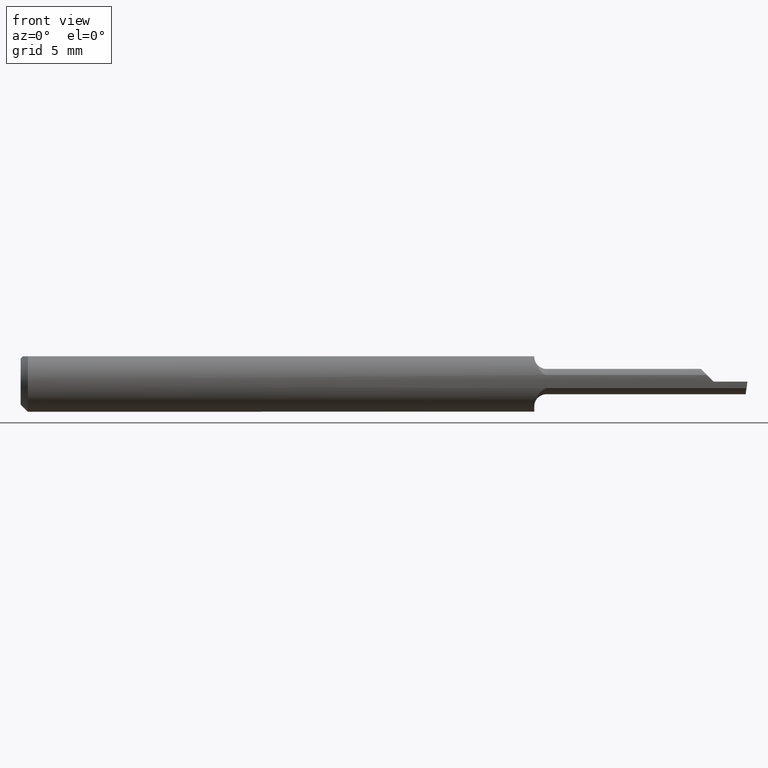
[diagram: clean part render]
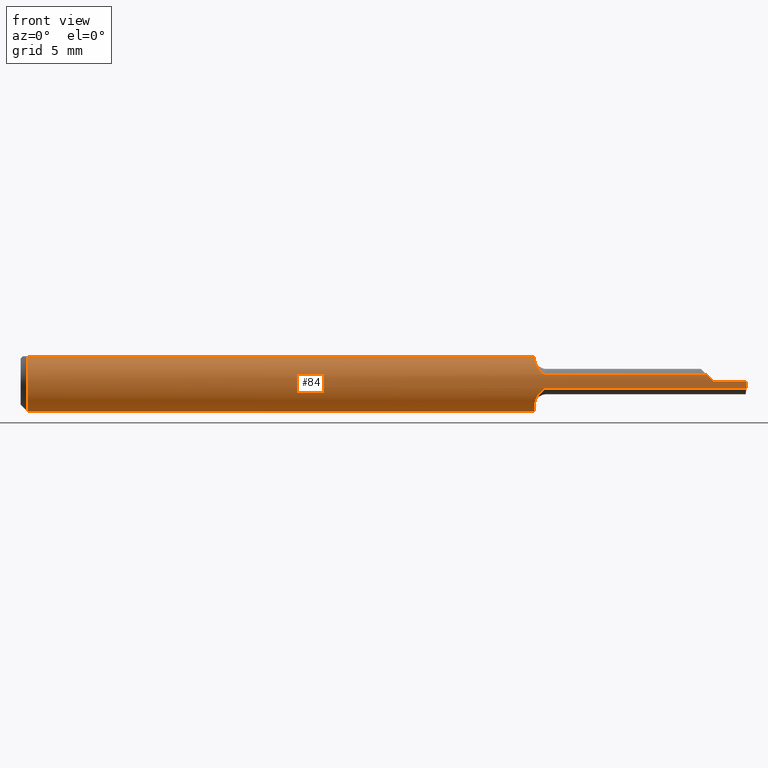
[diagram: same view with one face highlighted and labeled with its STEP entity id]
A machine part, front view. The second image highlights one B-rep face of the part: STEP entity #84.
In plain terms, the highlighted cylindrical surface (edge-blend (fillet) strip) has radius 1.5837 mm, axis along (-1, -0, -0).
Its self-contained STEP definition (entity closure, byte-faithful):
#4 = AXIS2_PLACEMENT_3D ( 'NONE', #352, #344, #346 ) ;
#21 = DIRECTION ( 'NONE',  ( 0.0000000000000000000, 1.000000000000000000, 0.0000000000000000000 ) ) ;
#29 = FACE_OUTER_BOUND ( 'NONE', #183, .T. ) ;
#38 = LINE ( 'NONE', #435, #292 ) ;
#47 = EDGE_CURVE ( 'NONE', #331, #353, #209, .T. ) ;
#52 = EDGE_CURVE ( 'NONE', #126, #471, #139, .T. ) ;
#62 = CARTESIAN_POINT ( 'NONE',  ( 1.060000000000000275, 0.0000000000000000000, 0.0000000000000000000 ) ) ;
#65 = VECTOR ( 'NONE', #253, 39.37007874015748143 ) ;
#69 = CIRCLE ( 'NONE', #78, 0.06235000000000000264 ) ;
#74 = ORIENTED_EDGE ( 'NONE', *, *, #588, .F. ) ;
#78 = AXIS2_PLACEMENT_3D ( 'NONE', #62, #339, #21 ) ;
#79 = EDGE_CURVE ( 'NONE', #353, #134, #268, .T. ) ;
#81 = CARTESIAN_POINT ( 'NONE',  ( 1.080433207467613288, -0.06062583751170534663, 0.01462750901418235876 ) ) ;
#84 = ADVANCED_FACE ( 'NONE', ( #29 ), #154, .T. ) ;
#94 = CARTESIAN_POINT ( 'NONE',  ( 2.249639673992782033E-32, -0.06234999999999999570, 1.836970198721027715E-16 ) ) ;
#97 = ORIENTED_EDGE ( 'NONE', *, *, #365, .F. ) ;
#98 = CIRCLE ( 'NONE', #4, 0.06235000000000000264 ) ;
#100 = DIRECTION ( 'NONE',  ( -1.000000000000000000, -0.0000000000000000000, -0.0000000000000000000 ) ) ;
#102 = VECTOR ( 'NONE', #530, 39.37007874015748143 ) ;
#108 = CARTESIAN_POINT ( 'NONE',  ( 1.064028026996482579, -0.05183160029813502212, -0.03490759449541482734 ) ) ;
#114 = CARTESIAN_POINT ( 'NONE',  ( 1.060000000000000275, -0.03575909090909097643, 0.05107651042656856377 ) ) ;
#118 = CARTESIAN_POINT ( 'NONE',  ( 1.085000000000000187, -0.06085649350649354611, -0.01356501743803189067 ) ) ;
#124 = CARTESIAN_POINT ( 'NONE',  ( 1.061991179683118292, -0.04967762520113500752, 0.03862103888887214592 ) ) ;
#126 = VERTEX_POINT ( 'NONE', #244 ) ;
#131 = LINE ( 'NONE', #297, #328 ) ;
#134 = VERTEX_POINT ( 'NONE', #431 ) ;
#137 =( BOUNDED_CURVE ( )  B_SPLINE_CURVE ( 3, ( #287, #342, #299, #301 ),
 .UNSPECIFIED., .F., .T. ) 
 B_SPLINE_CURVE_WITH_KNOTS ( ( 4, 4 ),
 ( 4.712388980384689674, 4.931705360090145263 ),
 .UNSPECIFIED. ) 
 CURVE ( )  GEOMETRIC_REPRESENTATION_ITEM ( )  RATIONAL_B_SPLINE_CURVE ( ( 1.000000000000000000, 0.9959957088194145713, 0.9959957088194145713, 1.000000000000000000 ) ) 
 REPRESENTATION_ITEM ( '' )  );
#139 = CIRCLE ( 'NONE', #317, 0.06235000000000000264 ) ;
#141 = CARTESIAN_POINT ( 'NONE',  ( 1.080425629910829910, -0.06062459270466517836, -0.01463238755247351676 ) ) ;
#144 = CARTESIAN_POINT ( 'NONE',  ( 0.01500000000000000465, 0.0000000000000000000, -0.06235000000000000264 ) ) ;
#145 = CARTESIAN_POINT ( 'NONE',  ( 1.068001007934660240, -0.05603364408257451718, -0.02766379716794686514 ) ) ;
#153 = DIRECTION ( 'NONE',  ( 1.000000000000000000, 0.0000000000000000000, 0.0000000000000000000 ) ) ;
#154 = CYLINDRICAL_SURFACE ( 'NONE', #487, 0.06235000000000000264 ) ;
#155 = ORIENTED_EDGE ( 'NONE', *, *, #218, .T. ) ;
#161 = CARTESIAN_POINT ( 'NONE',  ( 1.062503775457219524, -0.04920046092876605853, -0.03856495364018283634 ) ) ;
#162 = ORIENTED_EDGE ( 'NONE', *, *, #47, .T. ) ;
#166 = CARTESIAN_POINT ( 'NONE',  ( 1.060000000000000275, -0.03575909090909097643, 0.05107651042656856377 ) ) ;
#171 = CARTESIAN_POINT ( 'NONE',  ( 1.076638124316706691, -0.05991341419477896196, 0.01731585959404105882 ) ) ;
#176 = EDGE_CURVE ( 'NONE', #331, #224, #220, .T. ) ;
#177 = ORIENTED_EDGE ( 'NONE', *, *, #182, .F. ) ;
#182 = EDGE_CURVE ( 'NONE', #224, #326, #355, .T. ) ;
#183 = EDGE_LOOP ( 'NONE', ( #283, #162, #482, #243, #457, #282, #74, #155, #97, #467, #203, #397, #177 ) ) ;
#185 = CARTESIAN_POINT ( 'NONE',  ( 1.497375706250378302, -0.06185016300931096139, -0.009107135837653953722 ) ) ;
#190 = CARTESIAN_POINT ( 'NONE',  ( 1.498481216548989137, -0.06235000000000005121, 1.949268155119779707E-19 ) ) ;
#203 = ORIENTED_EDGE ( 'NONE', *, *, #347, .T. ) ;
#209 =( BOUNDED_CURVE ( )  B_SPLINE_CURVE ( 3, ( #541, #185, #528, #190 ),
 .UNSPECIFIED., .F., .T. ) 
 B_SPLINE_CURVE_WITH_KNOTS ( ( 4, 4 ),
 ( 1.141430502809118508, 1.360746882514575651 ),
 .UNSPECIFIED. ) 
 CURVE ( )  GEOMETRIC_REPRESENTATION_ITEM ( )  RATIONAL_B_SPLINE_CURVE ( ( 1.000000000000000000, 0.9959957088194145713, 0.9959957088194145713, 1.000000000000000000 ) ) 
 REPRESENTATION_ITEM ( '' )  );
#218 = EDGE_CURVE ( 'NONE', #372, #341, #416, .T. ) ;
#220 = LINE ( 'NONE', #533, #102 ) ;
#224 = VERTEX_POINT ( 'NONE', #118 ) ;
#226 = CARTESIAN_POINT ( 'NONE',  ( 1.082616656301558011, -0.06085649350649355999, -0.01356501743803187505 ) ) ;
#230 = CARTESIAN_POINT ( 'NONE',  ( 1.416434982561967981, -0.06085649350649352529, 0.01356501743803199302 ) ) ;
#233 = CARTESIAN_POINT ( 'NONE',  ( 1.060000000000000275, -0.04345517994939344930, 0.04568841430687983762 ) ) ;
#238 = DIRECTION ( 'NONE',  ( 0.0000000000000000000, 0.0000000000000000000, 1.000000000000000000 ) ) ;
#241 = CARTESIAN_POINT ( 'NONE',  ( 1.496854179736618162, -0.06085649350649351141, -0.01356501743803198955 ) ) ;
#243 = ORIENTED_EDGE ( 'NONE', *, *, #609, .T. ) ;
#244 = CARTESIAN_POINT ( 'NONE',  ( 0.01500000000000000465, 0.03386738844375223462, 0.05234999999999997988 ) ) ;
#253 = DIRECTION ( 'NONE',  ( -1.000000000000000000, -0.0000000000000000000, -0.0000000000000000000 ) ) ;
#257 = VERTEX_POINT ( 'NONE', #302 ) ;
#265 = CARTESIAN_POINT ( 'NONE',  ( 1.085000000000000187, -0.06085649350649354611, 0.01356501743803188893 ) ) ;
#268 = LINE ( 'NONE', #94, #65 ) ;
#282 = ORIENTED_EDGE ( 'NONE', *, *, #518, .F. ) ;
#283 = ORIENTED_EDGE ( 'NONE', *, *, #176, .F. ) ;
#287 = CARTESIAN_POINT ( 'NONE',  ( 1.429999999999999938, -0.06235000000000005121, 8.572527594031471957E-18 ) ) ;
#292 = VECTOR ( 'NONE', #492, 39.37007874015748143 ) ;
#293 = CARTESIAN_POINT ( 'NONE',  ( 0.01500000000000000465, 0.0000000000000000000, 0.0000000000000000000 ) ) ;
#297 = CARTESIAN_POINT ( 'NONE',  ( 0.0000000000000000000, 0.03386738844375223462, 0.05234999999999997988 ) ) ;
#299 = CARTESIAN_POINT ( 'NONE',  ( 1.420892864162346170, -0.06185016300931096139, 0.009107135837653894742 ) ) ;
#301 = CARTESIAN_POINT ( 'NONE',  ( 1.416434982561967981, -0.06085649350649352529, 0.01356501743803199302 ) ) ;
#302 = CARTESIAN_POINT ( 'NONE',  ( 1.060000000000000275, 0.03386738844375224156, 0.05235000000000000070 ) ) ;
#310 = CARTESIAN_POINT ( 'NONE',  ( 1.070446013526555662, -0.05765668881463201917, 0.02399993265345986074 ) ) ;
#317 = AXIS2_PLACEMENT_3D ( 'NONE', #593, #100, #590 ) ;
#318 = VERTEX_POINT ( 'NONE', #591 ) ;
#320 = CIRCLE ( 'NONE', #569, 0.06235000000000000264 ) ;
#326 = VERTEX_POINT ( 'NONE', #589 ) ;
#327 = CARTESIAN_POINT ( 'NONE',  ( 1.085000000000000187, -0.06085649350649354611, -0.01356501743803189067 ) ) ;
#328 = VECTOR ( 'NONE', #153, 39.37007874015748143 ) ;
#331 = VERTEX_POINT ( 'NONE', #241 ) ;
#332 = CARTESIAN_POINT ( 'NONE',  ( 1.070470123245630845, -0.05766828269002156199, -0.02396978481147360451 ) ) ;
#339 = DIRECTION ( 'NONE',  ( 1.000000000000000000, -5.691349986800549142E-18, 0.0000000000000000000 ) ) ;
#341 = VERTEX_POINT ( 'NONE', #543 ) ;
#342 = CARTESIAN_POINT ( 'NONE',  ( 1.425432715528476502, -0.06235000000000000264, 0.004567284471523349459 ) ) ;
#344 = DIRECTION ( 'NONE',  ( 1.000000000000000000, -5.691349986800549142E-18, 0.0000000000000000000 ) ) ;
#346 = DIRECTION ( 'NONE',  ( 0.0000000000000000000, 1.000000000000000000, 0.0000000000000000000 ) ) ;
#347 = EDGE_CURVE ( 'NONE', #126, #257, #131, .T. ) ;
#352 = CARTESIAN_POINT ( 'NONE',  ( 1.060000000000000275, 0.0000000000000000000, 0.0000000000000000000 ) ) ;
#353 = VERTEX_POINT ( 'NONE', #443 ) ;
#355 = B_SPLINE_CURVE_WITH_KNOTS ( 'NONE', 3,
 ( #327, #226, #141, #506, #427, #332, #145, #108, #161, #414, #413, #469 ),
 .UNSPECIFIED., .F., .F.,
 ( 4, 2, 2, 2, 2, 4 ),
 ( 1.959605866442545805E-07, 0.0001781565565329113149, 0.0003561171524791784050, 0.0007120383443717128022, 0.001067959536264247037, 0.001423880728156781596 ),
 .UNSPECIFIED. ) ;
#363 = DIRECTION ( 'NONE',  ( -1.000000000000000000, -0.0000000000000000000, -0.0000000000000000000 ) ) ;
#365 = EDGE_CURVE ( 'NONE', #471, #341, #320, .T. ) ;
#372 = VERTEX_POINT ( 'NONE', #496 ) ;
#378 = EDGE_CURVE ( 'NONE', #326, #257, #69, .T. ) ;
#381 = VERTEX_POINT ( 'NONE', #114 ) ;
#390 = CARTESIAN_POINT ( 'NONE',  ( 0.0000000000000000000, 0.0000000000000000000, 0.0000000000000000000 ) ) ;
#397 = ORIENTED_EDGE ( 'NONE', *, *, #378, .F. ) ;
#413 = CARTESIAN_POINT ( 'NONE',  ( 1.060000000000000497, -0.03960861689666768382, -0.04838142517902475209 ) ) ;
#414 = CARTESIAN_POINT ( 'NONE',  ( 1.060507341409734794, -0.04312570811744949328, -0.04525609687369244044 ) ) ;
#416 = LINE ( 'NONE', #437, #520 ) ;
#427 = CARTESIAN_POINT ( 'NONE',  ( 1.074988575955668990, -0.05943257586305055601, -0.01893293834469145578 ) ) ;
#431 = CARTESIAN_POINT ( 'NONE',  ( 1.429999999999999938, -0.06235000000000005121, 8.572527594031471957E-18 ) ) ;
#435 = CARTESIAN_POINT ( 'NONE',  ( 1.265000000000000124, -0.06085649350649351141, 0.01356501743803198955 ) ) ;
#437 = CARTESIAN_POINT ( 'NONE',  ( 0.0000000000000000000, -0.03386738844375222768, 0.05234999999999997988 ) ) ;
#443 = CARTESIAN_POINT ( 'NONE',  ( 1.498481216548989137, -0.06235000000000005121, 1.949268155119779707E-19 ) ) ;
#457 = ORIENTED_EDGE ( 'NONE', *, *, #468, .F. ) ;
#460 = CARTESIAN_POINT ( 'NONE',  ( 1.068026871663806388, -0.05606084547731506051, 0.02761677482959689484 ) ) ;
#462 = CARTESIAN_POINT ( 'NONE',  ( 1.074979073382735129, -0.05942994764455450385, 0.01894190674338625327 ) ) ;
#467 = ORIENTED_EDGE ( 'NONE', *, *, #52, .F. ) ;
#468 = EDGE_CURVE ( 'NONE', #318, #555, #38, .T. ) ;
#469 = CARTESIAN_POINT ( 'NONE',  ( 1.060000000000000275, -0.03575909090909097643, -0.05107651042656856377 ) ) ;
#471 = VERTEX_POINT ( 'NONE', #144 ) ;
#480 = B_SPLINE_CURVE_WITH_KNOTS ( 'NONE', 3,
 ( #166, #233, #124, #460, #310, #462, #171, #81, #561, #265 ),
 .UNSPECIFIED., .F., .F.,
 ( 4, 2, 2, 2, 4 ),
 ( 3.574606898954817336E-06, 0.0007127301008604467998, 0.001067307847841190895, 0.001244596721331566033, 0.001421885594821941387 ),
 .UNSPECIFIED. ) ;
#482 = ORIENTED_EDGE ( 'NONE', *, *, #79, .T. ) ;
#487 = AXIS2_PLACEMENT_3D ( 'NONE', #390, #504, #572 ) ;
#492 = DIRECTION ( 'NONE',  ( 1.000000000000000000, -5.691349986800549142E-18, 0.0000000000000000000 ) ) ;
#496 = CARTESIAN_POINT ( 'NONE',  ( 1.060000000000000275, -0.03386738844380023788, 0.05235000000000000070 ) ) ;
#504 = DIRECTION ( 'NONE',  ( -1.000000000000000000, -0.0000000000000000000, -0.0000000000000000000 ) ) ;
#506 = CARTESIAN_POINT ( 'NONE',  ( 1.076640005980066928, -0.05991358948572357568, -0.01731501663379265976 ) ) ;
#518 = EDGE_CURVE ( 'NONE', #381, #318, #480, .T. ) ;
#520 = VECTOR ( 'NONE', #363, 39.37007874015748143 ) ;
#528 = CARTESIAN_POINT ( 'NONE',  ( 1.497920232295341325, -0.06235000000000000958, -0.004567284471523378950 ) ) ;
#530 = DIRECTION ( 'NONE',  ( -1.000000000000000000, 5.691349986800549142E-18, -0.0000000000000000000 ) ) ;
#533 = CARTESIAN_POINT ( 'NONE',  ( 1.265000000000000124, -0.06085649350649351141, -0.01356501743803198955 ) ) ;
#541 = CARTESIAN_POINT ( 'NONE',  ( 1.496854179736618162, -0.06085649350649351141, -0.01356501743803198955 ) ) ;
#543 = CARTESIAN_POINT ( 'NONE',  ( 0.01500000000000185213, -0.03386738844380016850, 0.05235000000000000070 ) ) ;
#555 = VERTEX_POINT ( 'NONE', #230 ) ;
#561 = CARTESIAN_POINT ( 'NONE',  ( 1.082623118696649511, -0.06085649350649354611, 0.01356501743803190975 ) ) ;
#569 = AXIS2_PLACEMENT_3D ( 'NONE', #293, #584, #238 ) ;
#572 = DIRECTION ( 'NONE',  ( 0.0000000000000000000, 0.0000000000000000000, 1.000000000000000000 ) ) ;
#584 = DIRECTION ( 'NONE',  ( -1.000000000000000000, -0.0000000000000000000, -0.0000000000000000000 ) ) ;
#588 = EDGE_CURVE ( 'NONE', #372, #381, #98, .T. ) ;
#589 = CARTESIAN_POINT ( 'NONE',  ( 1.060000000000000275, -0.03575909090909097643, -0.05107651042656856377 ) ) ;
#590 = DIRECTION ( 'NONE',  ( 0.0000000000000000000, 0.0000000000000000000, 1.000000000000000000 ) ) ;
#591 = CARTESIAN_POINT ( 'NONE',  ( 1.085000000000000187, -0.06085649350649354611, 0.01356501743803188893 ) ) ;
#593 = CARTESIAN_POINT ( 'NONE',  ( 0.01500000000000000465, 0.0000000000000000000, 0.0000000000000000000 ) ) ;
#609 = EDGE_CURVE ( 'NONE', #134, #555, #137, .T. ) ;